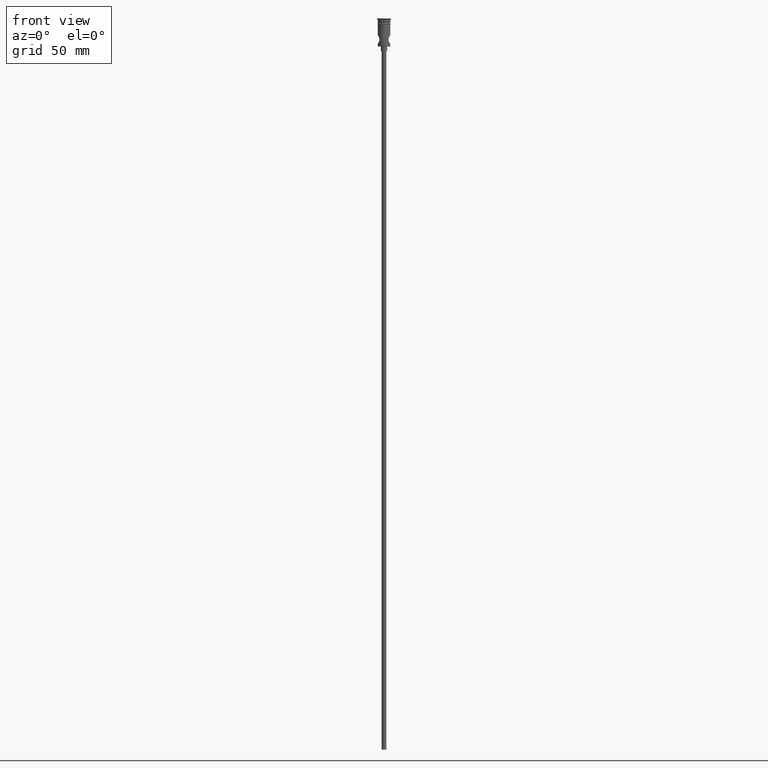
[diagram: clean part render]
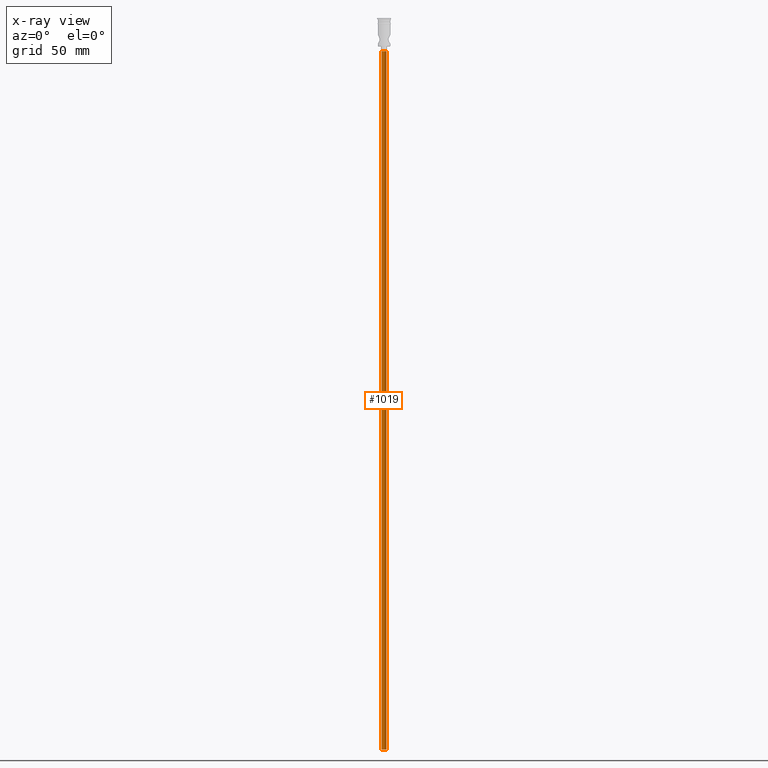
[diagram: x-ray — body ghosted, one internal face saturated and labeled with its STEP entity id]
A machine part, front view, then the same camera in x-ray: the body is ghosted and one INTERNAL B-rep face — a face not visible from any outside direction — is saturated and labeled: STEP entity #1019.
In plain terms, the highlighted cylindrical surface (edge-blend (fillet) strip) has radius 1.5 mm, axis along (-0, -0, 1).
Its self-contained STEP definition (entity closure, byte-faithful):
#3 = FACE_OUTER_BOUND ( 'NONE', #208, .T. ) ;
#20 = DIRECTION ( 'NONE',  ( -0.000000000000000000, -0.000000000000000000, 1.000000000000000000 ) ) ;
#39 = DIRECTION ( 'NONE',  ( 0.000000000000000000, 0.000000000000000000, -1.000000000000000000 ) ) ;
#52 = CARTESIAN_POINT ( 'NONE',  ( 1.500000000000000222, 0.000000000000000000, -468.0000000000000000 ) ) ;
#61 = ORIENTED_EDGE ( 'NONE', *, *, #906, .T. ) ;
#63 = AXIS2_PLACEMENT_3D ( 'NONE', #945, #39, #538 ) ;
#102 = CYLINDRICAL_SURFACE ( 'NONE', #1143, 1.500000000000000222 ) ;
#186 = LINE ( 'NONE', #1160, #921 ) ;
#195 = CARTESIAN_POINT ( 'NONE',  ( 1.500000000000000222, 0.000000000000000000, -468.0000000000000000 ) ) ;
#208 = EDGE_LOOP ( 'NONE', ( #930, #354, #61, #1178 ) ) ;
#242 = CIRCLE ( 'NONE', #63, 1.500000000000000222 ) ;
#335 = DIRECTION ( 'NONE',  ( 1.000000000000000000, 0.000000000000000000, 0.000000000000000000 ) ) ;
#354 = ORIENTED_EDGE ( 'NONE', *, *, #1219, .T. ) ;
#381 = VERTEX_POINT ( 'NONE', #52 ) ;
#422 = VECTOR ( 'NONE', #856, 1000.000000000000000 ) ;
#436 = EDGE_CURVE ( 'NONE', #381, #1394, #586, .T. ) ;
#438 = CARTESIAN_POINT ( 'NONE',  ( 1.500000000000000222, 0.000000000000000000, -20.99999999999999645 ) ) ;
#476 = EDGE_CURVE ( 'NONE', #1372, #381, #674, .T. ) ;
#538 = DIRECTION ( 'NONE',  ( -1.000000000000000000, 0.000000000000000000, 0.000000000000000000 ) ) ;
#586 = LINE ( 'NONE', #195, #422 ) ;
#608 = DIRECTION ( 'NONE',  ( 0.000000000000000000, 0.000000000000000000, -1.000000000000000000 ) ) ;
#635 = CARTESIAN_POINT ( 'NONE',  ( -1.500000000000000222, 1.836970198721030181E-16, -20.99999999999999645 ) ) ;
#674 = CIRCLE ( 'NONE', #1101, 1.500000000000000222 ) ;
#738 = VERTEX_POINT ( 'NONE', #635 ) ;
#740 = DIRECTION ( 'NONE',  ( -1.000000000000000000, 0.000000000000000000, 0.000000000000000000 ) ) ;
#852 = CARTESIAN_POINT ( 'NONE',  ( 0.000000000000000000, 0.000000000000000000, -468.0000000000000000 ) ) ;
#856 = DIRECTION ( 'NONE',  ( -0.000000000000000000, -0.000000000000000000, 1.000000000000000000 ) ) ;
#892 = CARTESIAN_POINT ( 'NONE',  ( 0.000000000000000000, 0.000000000000000000, -468.0000000000000000 ) ) ;
#906 = EDGE_CURVE ( 'NONE', #738, #1394, #242, .T. ) ;
#921 = VECTOR ( 'NONE', #1060, 1000.000000000000000 ) ;
#930 = ORIENTED_EDGE ( 'NONE', *, *, #476, .F. ) ;
#945 = CARTESIAN_POINT ( 'NONE',  ( 0.000000000000000000, 0.000000000000000000, -20.99999999999999645 ) ) ;
#1019 = ADVANCED_FACE ( 'NONE', ( #3 ), #102, .T. ) ;
#1060 = DIRECTION ( 'NONE',  ( -0.000000000000000000, -0.000000000000000000, 1.000000000000000000 ) ) ;
#1101 = AXIS2_PLACEMENT_3D ( 'NONE', #852, #608, #740 ) ;
#1143 = AXIS2_PLACEMENT_3D ( 'NONE', #892, #20, #335 ) ;
#1160 = CARTESIAN_POINT ( 'NONE',  ( -1.500000000000000222, 1.836970198721030181E-16, -468.0000000000000000 ) ) ;
#1178 = ORIENTED_EDGE ( 'NONE', *, *, #436, .F. ) ;
#1219 = EDGE_CURVE ( 'NONE', #1372, #738, #186, .T. ) ;
#1372 = VERTEX_POINT ( 'NONE', #1419 ) ;
#1394 = VERTEX_POINT ( 'NONE', #438 ) ;
#1419 = CARTESIAN_POINT ( 'NONE',  ( -1.500000000000000222, 1.836970198721030181E-16, -468.0000000000000000 ) ) ;